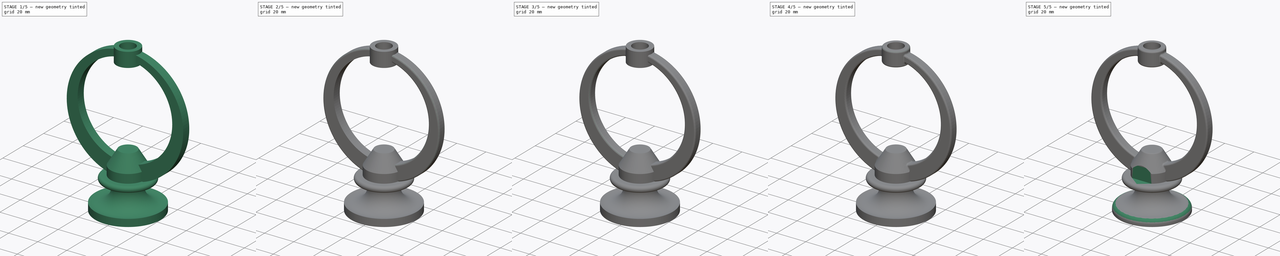
[diagram: build sequence overview — one tinted view per stage of 5, left to right]
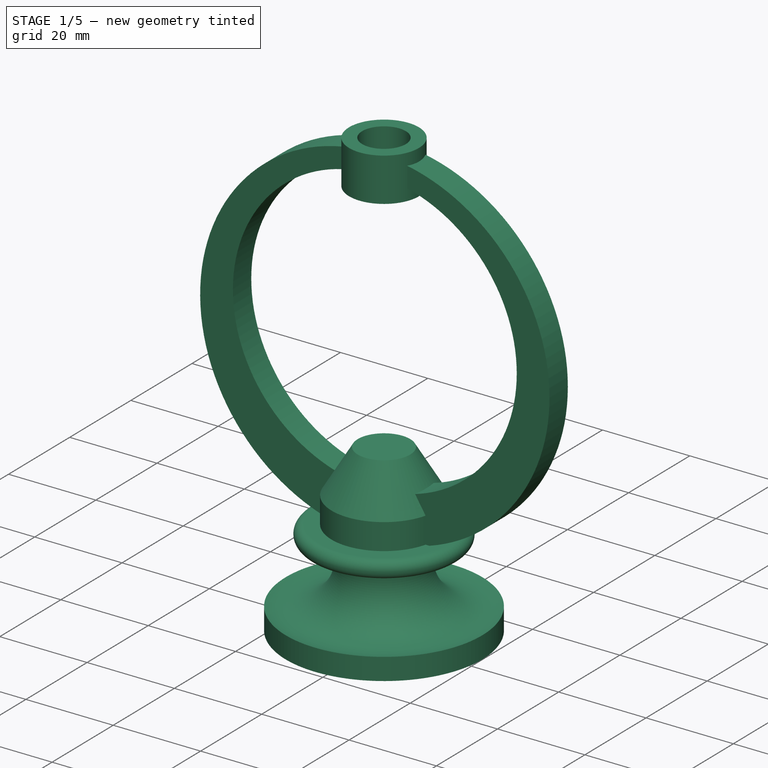
[diagram: stage 1 of 5 — iso view after this stage's code; geometry added in this stage tinted green]
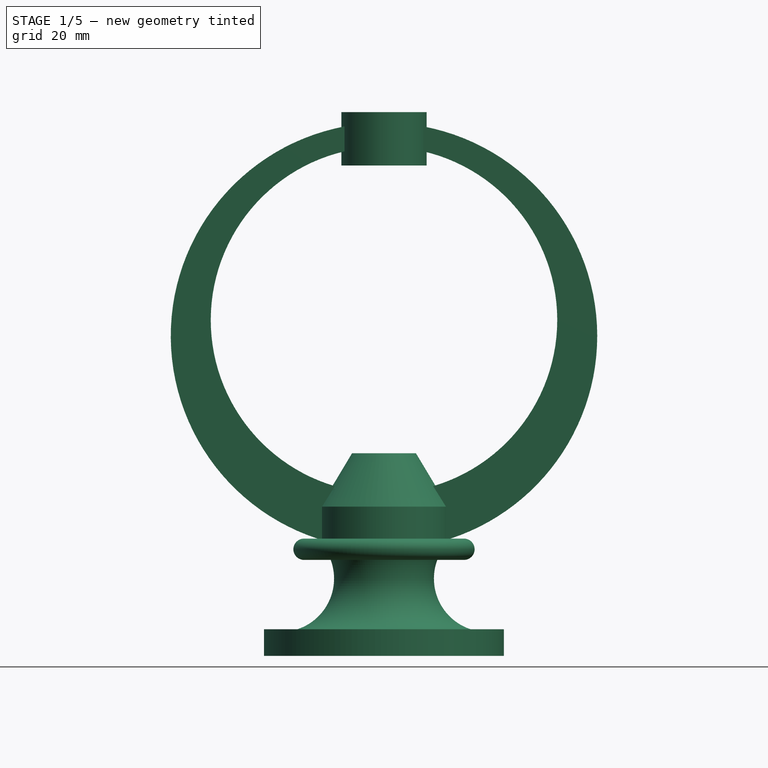
[diagram: stage 1 of 5 — front view after this stage's code; geometry added in this stage tinted green]
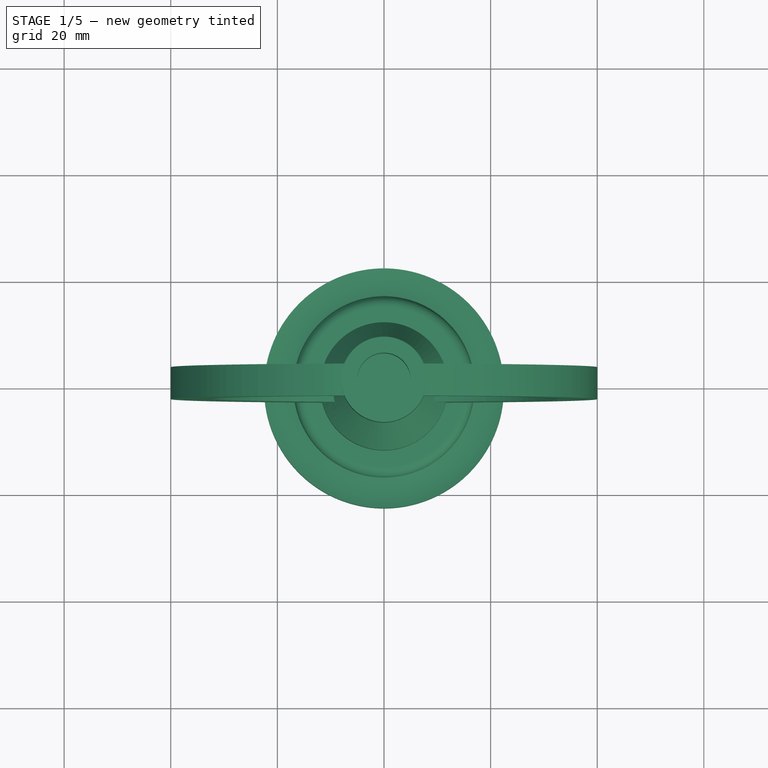
[diagram: stage 1 of 5 — top view after this stage's code; geometry added in this stage tinted green]
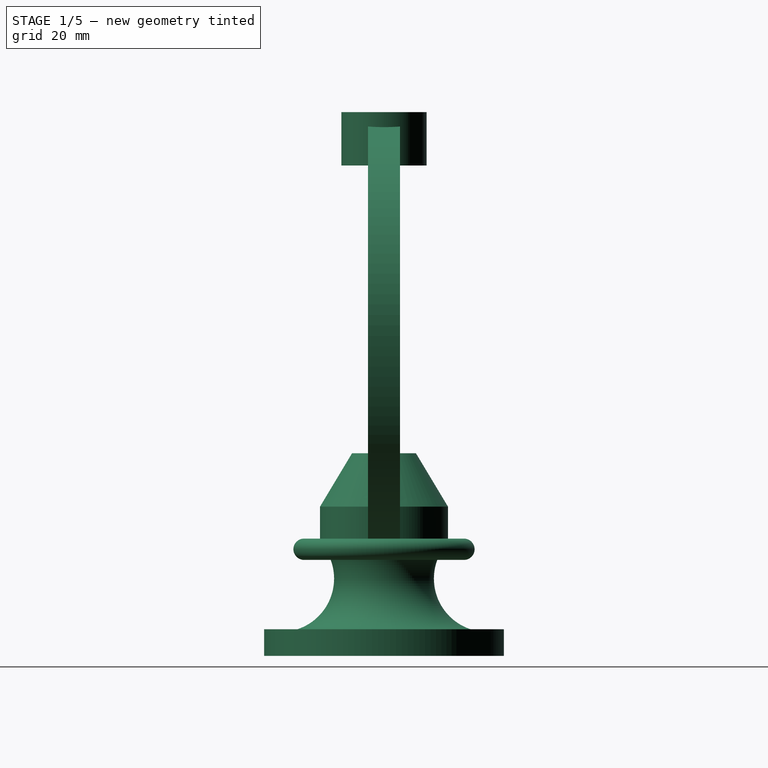
[diagram: stage 1 of 5 — right view after this stage's code; geometry added in this stage tinted green]
FCSTD DOCUMENT  (FreeCAD 0.19R24291 (Git))
Label: week5
License: All rights reserved
LicenseURL: http://en.wikipedia.org/wiki/All_rights_reserved
objects: PartDesign::Fillet×17, Sketcher::SketchObject×7, PartDesign::Revolution×2, PartDesign::Pad×2, PartDesign::Pocket×2, PartDesign::Groove×1, PartDesign::Body×1
note: 56 computed .brp shape members not serialized (recipe doc carries the construction recipe); baked Part::Feature solids carry a one-line shape summary decoded from their .brp

FEATURE [Sketcher::SketchObject] Sketch
  FullyConstrained = true
  MapMode = 5
  Placement = pos=(0,0,0) rot=(1,0,0;1.5708rad)
  Support = -> [XZ_Plane]
  sketch-geometry (9):
    g0: LineSegment StartX=0 StartY=0 StartZ=0 EndX=22.5 EndY=0 EndZ=0
    g1: LineSegment StartX=22.5 StartY=0 StartZ=0 EndX=22.5 EndY=5 EndZ=0
    g2: ArcOfCircle CenterX=19.3661 CenterY=14.4962 CenterZ=0 NormalX=0 NormalY=0 NormalZ=1 AngleXU=0 Radius=10 StartAngle=2.78362 EndAngle=5.03115
    g3: LineSegment StartX=10 StartY=18 StartZ=0 EndX=0 EndY=18 EndZ=0
    g4: LineSegment StartX=0 StartY=18 StartZ=0 EndX=0 EndY=0 EndZ=0
    g5: ArcOfCircle CenterX=15 CenterY=20 CenterZ=0 NormalX=0 NormalY=0 NormalZ=1 AngleXU=0 Radius=2 StartAngle=4.71239 EndAngle=7.85398
    g6: LineSegment StartX=0 StartY=18 StartZ=0 EndX=15 EndY=18 EndZ=0
    g7: LineSegment StartX=0 StartY=22 StartZ=0 EndX=15 EndY=22 EndZ=0
    g8: LineSegment StartX=0 StartY=22 StartZ=0 EndX=0 EndY=18 EndZ=0
  constraints (25):
    c: Horizontal(g0)
    c: Coincident(g0,g1)
    c: Vertical(g1)
    c: Coincident(g2,g3)
    c: Coincident(g3,g4)
    c: Coincident(g4,g0)
    c: Vertical(g4)
    c: DistanceY(g4,g4) = 18
    c: DistanceX(g0,g0) = 22.5
    c: Horizontal(g3)
    c: DistanceX(g3,g3) = 10
    c: Radius(g2) = 10
    c: DistanceY(g1,g1) = 5
    c: Coincident(g1,g2)
    c: Coincident(g-1,g0)
    c: Tangent(g6,g5) = -1.5708
    c: Tangent(g7,g5) = 1.5708
    c: Horizontal(g6)
    c: Horizontal(g7)
    c: Coincident(g3,g6)
    c: PointOnObject(g7,g-2)
    c: Coincident(g8,g7)
    c: Coincident(g8,g3)
    c: DistanceY(g8,g8) = 4
    c: DistanceX(g7,g7) = 15
FEATURE [PartDesign::Revolution] Revolution
  Angle = 360
  Axis = (-3e-16,3e-16,1)
  Base = (0,0,0)
  Placement = pos=(0,0,0) rot=(1,0,0;1.5708rad)
  Profile = -> Sketch
  ReferenceAxis = -> Z_Axis
  Refine = true
FEATURE [Sketcher::SketchObject] Sketch001
  FullyConstrained = true
  MapMode = 5
  Placement = pos=(0,0,0) rot=(1,0,0;1.5708rad)
  Support = -> [XZ_Plane]
  sketch-geometry (2):
    g0: Circle CenterX=0 CenterY=60 CenterZ=0 NormalX=0 NormalY=0 NormalZ=1 AngleXU=0 Radius=40
    g1: Circle CenterX=0 CenterY=63 CenterZ=0 NormalX=0 NormalY=0 NormalZ=1 AngleXU=0 Radius=32.5
  constraints (6):
    c: PointOnObject(g0,g-2)
    c: PointOnObject(g1,g-2)
    c: DistanceY(g1,g0) = -3
    c: Radius(g0) = 40
    c: Radius(g1) = 32.5
    c: DistanceY(g-1,g0) = 60
FEATURE [PartDesign::Pad] Pad
  BaseFeature = -> Revolution
  Direction = (1,1,1)
  Length = 6
  Length2 = 100
  Midplane = true
  Placement = pos=(0,0,0) rot=(1,0,0;1.5708rad)
  Profile = -> Sketch001
  Refine = true
  Type = 0
FEATURE [Sketcher::SketchObject] Sketch002
  FullyConstrained = true
  MapMode = 5
  Placement = pos=(0,0,0) rot=(1,0,0;1.5708rad)
  Support = -> [XZ_Plane]
  sketch-geometry (5):
    g0: LineSegment StartX=0 StartY=22 StartZ=0 EndX=12 EndY=22 EndZ=0
    g1: LineSegment StartX=12 StartY=22 StartZ=0 EndX=12 EndY=28 EndZ=0
    g2: LineSegment StartX=12 StartY=28 StartZ=0 EndX=6 EndY=38 EndZ=0
    g3: LineSegment StartX=6 StartY=38 StartZ=0 EndX=0 EndY=38 EndZ=0
    g4: LineSegment StartX=0 StartY=38 StartZ=0 EndX=0 EndY=22 EndZ=0
  constraints (15):
    c: PointOnObject(g0,g-2)
    c: Coincident(g0,g1)
    c: Coincident(g1,g2)
    c: Coincident(g2,g3)
    c: Horizontal(g3)
    c: Coincident(g3,g4)
    c: Coincident(g4,g0)
    c: Vertical(g4)
    c: Horizontal(g0)
    c: DistanceY(g-1,g0) = 22
    c: DistanceY(g4,g4) = 16
    c: DistanceX(g3,g3) = 6
    c: DistanceY(g1,g1) = 6
    c: Vertical(g1)
    c: DistanceX(g0,g0) = 12
FEATURE [PartDesign::Revolution] Revolution001
  Angle = 360
  Axis = (-3e-16,3e-16,1)
  Base = (0,0,0)
  BaseFeature = -> Pad
  Placement = pos=(0,0,0) rot=(1,0,0;1.5708rad)
  Profile = -> Sketch002
  ReferenceAxis = -> Z_Axis
  Refine = true
  Reversed = true
FEATURE [Sketcher::SketchObject] Sketch003
  AttachmentOffset = pos=(0,0,102) rot=(0,0,1;0rad)
  FullyConstrained = true
  MapMode = 5
  Placement = pos=(0,0,102) rot=(0,0,1;0rad)
  Support = -> [XY_Plane]
  sketch-geometry (1):
    g0: Circle CenterX=0 CenterY=0 CenterZ=0 NormalX=0 NormalY=0 NormalZ=1 AngleXU=0 Radius=8
  constraints (2):
    c: Coincident(g0,g-1)
    c: Radius(g0) = 8
FEATURE [PartDesign::Pad] Pad001
  BaseFeature = -> Revolution001
  Direction = (1,1,1)
  Length = 10
  Length2 = 100
  Placement = pos=(0,0,0) rot=(1,0,0;1.5708rad)
  Profile = -> Sketch003
  Refine = true
  Reversed = true
  Type = 0
FEATURE [Sketcher::SketchObject] Sketch004
  AttachmentOffset = pos=(0,0,102) rot=(0,0,1;0rad)
  FullyConstrained = true
  MapMode = 5
  Placement = pos=(0,0,102) rot=(0,0,1;0rad)
  Support = -> [XY_Plane]
  sketch-geometry (1):
    g0: Circle CenterX=0 CenterY=0 CenterZ=0 NormalX=0 NormalY=0 NormalZ=1 AngleXU=0 Radius=5
  constraints (2):
    c: Coincident(g0,g-1)
    c: Radius(g0) = 5
FEATURE [PartDesign::Pocket] Pocket
  BaseFeature = -> Pad001
  Length = 10
  Length2 = 100
  Placement = pos=(0,0,0) rot=(1,0,0;1.5708rad)
  Profile = -> Sketch004
  Refine = true
  Type = 0
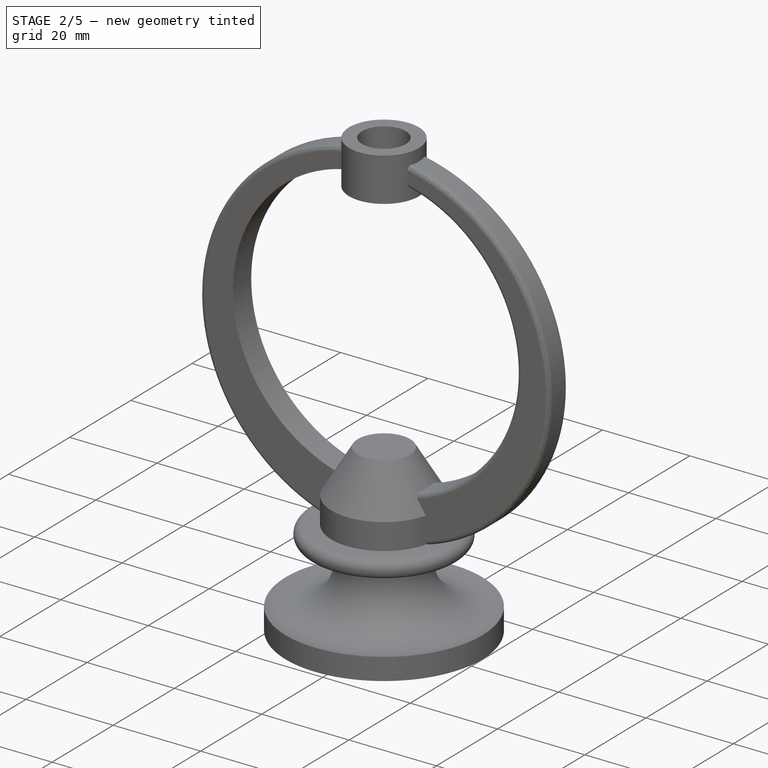
[diagram: stage 2 of 5 — iso view after this stage's code; geometry added in this stage tinted green]
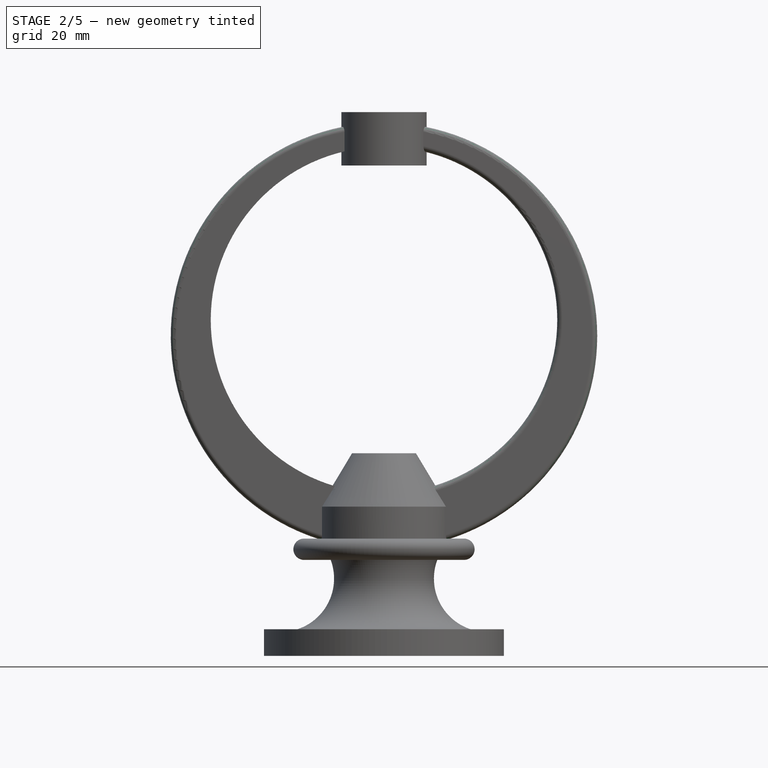
[diagram: stage 2 of 5 — front view after this stage's code; geometry added in this stage tinted green]
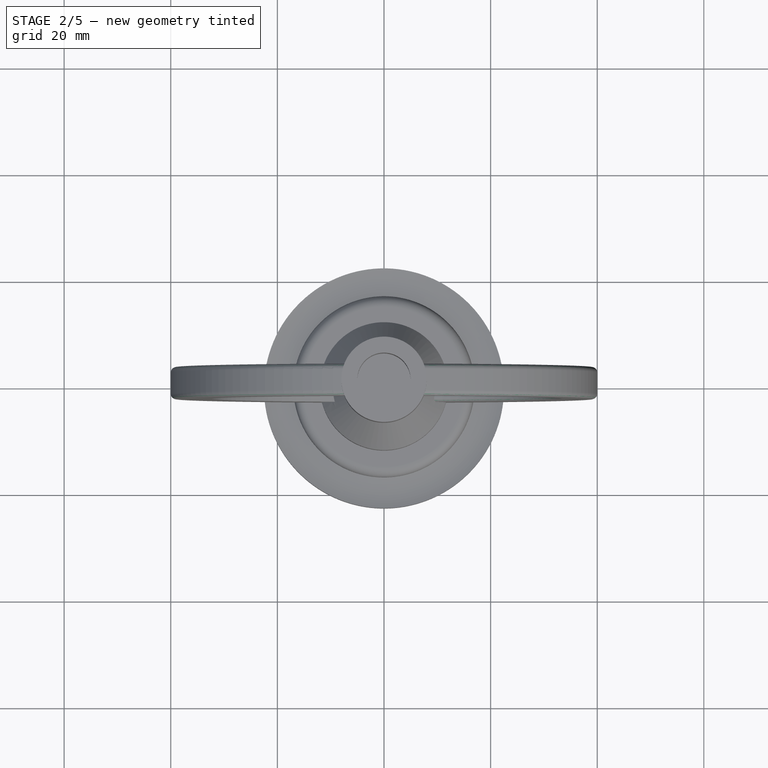
[diagram: stage 2 of 5 — top view after this stage's code; geometry added in this stage tinted green]
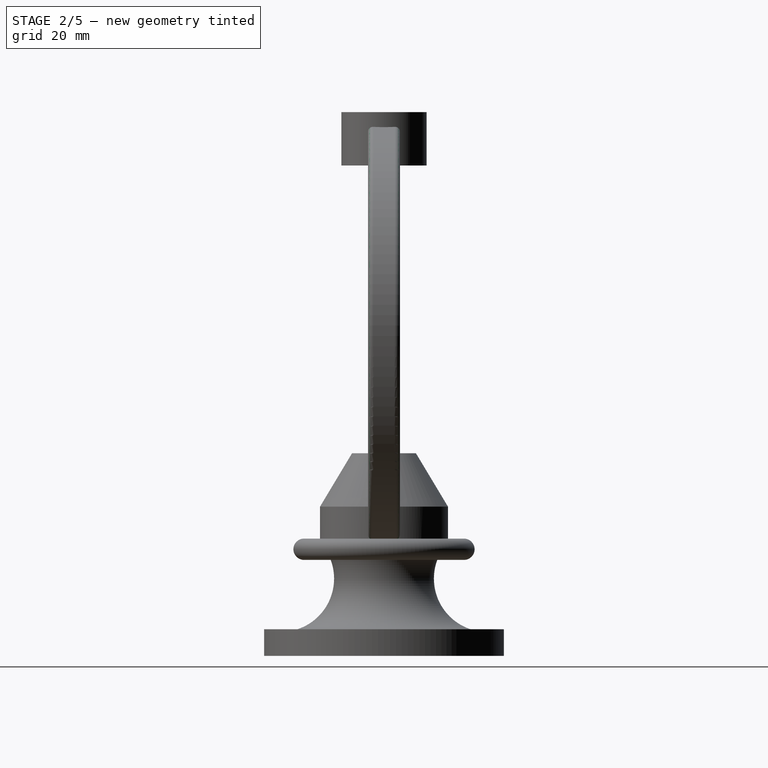
[diagram: stage 2 of 5 — right view after this stage's code; geometry added in this stage tinted green]
FEATURE [PartDesign::Fillet] Fillet
  Base = -> Pocket [Edge22]
  BaseFeature = -> Pocket
  Placement = pos=(0,0,0) rot=(1,0,0;1.5708rad)
  Radius = 1
  Refine = true
  SupportTransform = false
FEATURE [PartDesign::Fillet] Fillet001
  Base = -> Fillet [Edge20]
  BaseFeature = -> Fillet
  Placement = pos=(0,0,0) rot=(1,0,0;1.5708rad)
  Radius = 1
  Refine = true
  SupportTransform = false
FEATURE [PartDesign::Fillet] Fillet002
  Base = -> Fillet001 [Edge22]
  BaseFeature = -> Fillet001
  Placement = pos=(0,0,0) rot=(1,0,0;1.5708rad)
  Radius = 1
  Refine = true
  SupportTransform = false
FEATURE [PartDesign::Fillet] Fillet003
  Base = -> Fillet002 [Edge30]
  BaseFeature = -> Fillet002
  Placement = pos=(0,0,0) rot=(1,0,0;1.5708rad)
  Radius = 1
  Refine = true
  SupportTransform = false
FEATURE [PartDesign::Fillet] Fillet004
  Base = -> Fillet003 [Edge68]
  BaseFeature = -> Fillet003
  Placement = pos=(0,0,0) rot=(1,0,0;1.5708rad)
  Radius = 1
  Refine = true
  SupportTransform = false
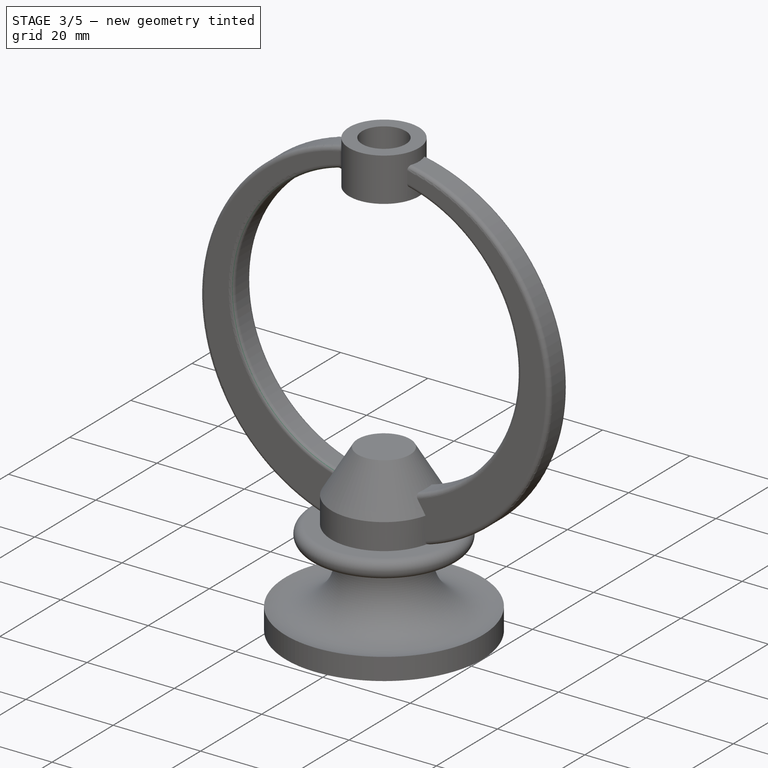
[diagram: stage 3 of 5 — iso view after this stage's code; geometry added in this stage tinted green]
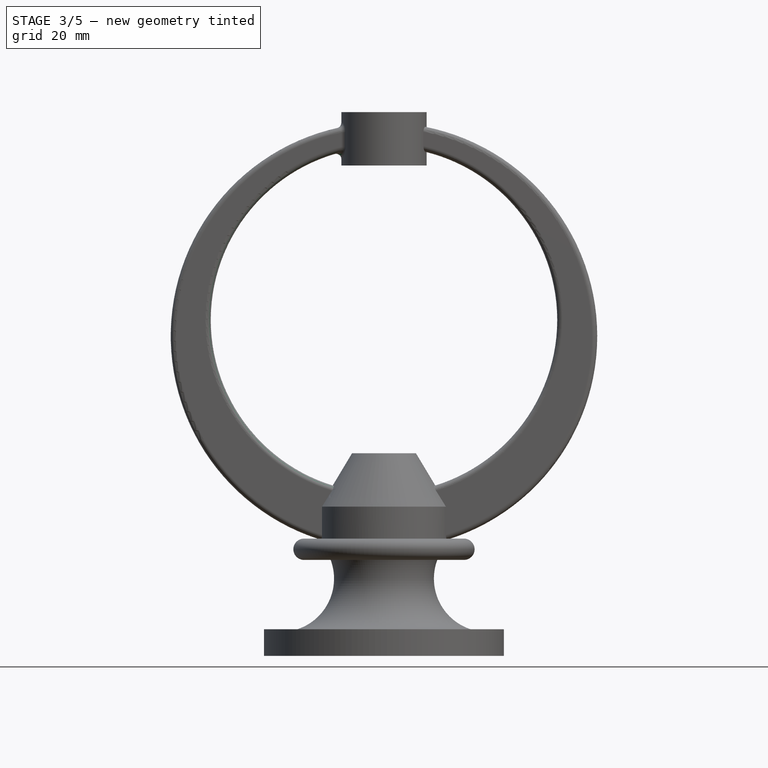
[diagram: stage 3 of 5 — front view after this stage's code; geometry added in this stage tinted green]
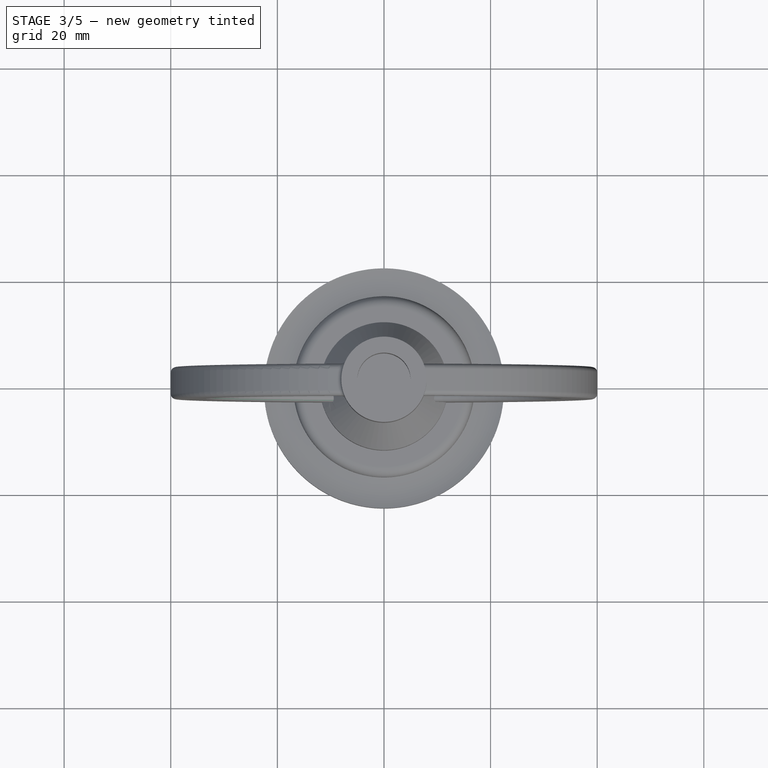
[diagram: stage 3 of 5 — top view after this stage's code; geometry added in this stage tinted green]
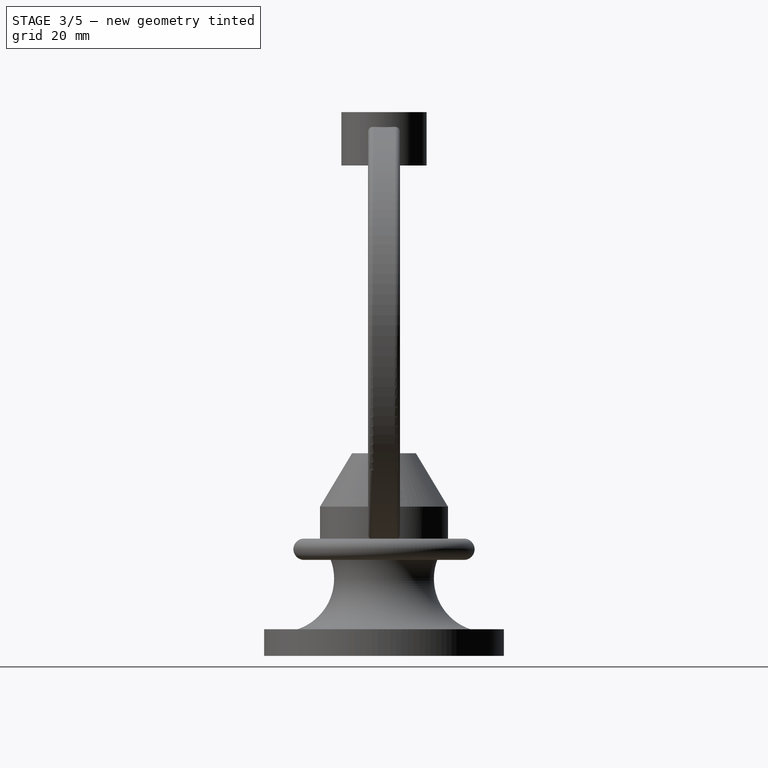
[diagram: stage 3 of 5 — right view after this stage's code; geometry added in this stage tinted green]
FEATURE [PartDesign::Fillet] Fillet005
  Base = -> Fillet004 [Edge33]
  BaseFeature = -> Fillet004
  Placement = pos=(0,0,0) rot=(1,0,0;1.5708rad)
  Radius = 1
  Refine = true
  SupportTransform = false
FEATURE [PartDesign::Fillet] Fillet006
  Base = -> Fillet005 [Edge26]
  BaseFeature = -> Fillet005
  Placement = pos=(0,0,0) rot=(1,0,0;1.5708rad)
  Radius = 1
  Refine = true
  SupportTransform = false
FEATURE [PartDesign::Fillet] Fillet007
  Base = -> Fillet006 [Edge35]
  BaseFeature = -> Fillet006
  Placement = pos=(0,0,0) rot=(1,0,0;1.5708rad)
  Radius = 1
  Refine = true
  SupportTransform = false
FEATURE [PartDesign::Fillet] Fillet008
  Base = -> Fillet007 [Edge71]
  BaseFeature = -> Fillet007
  Placement = pos=(0,0,0) rot=(1,0,0;1.5708rad)
  Radius = 1
  Refine = true
  SupportTransform = false
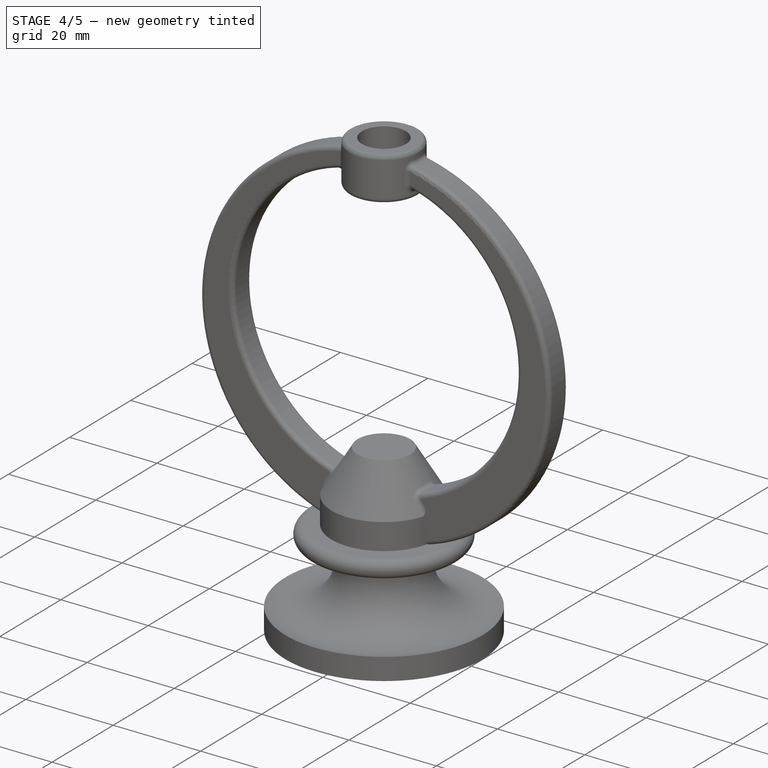
[diagram: stage 4 of 5 — iso view after this stage's code; geometry added in this stage tinted green]
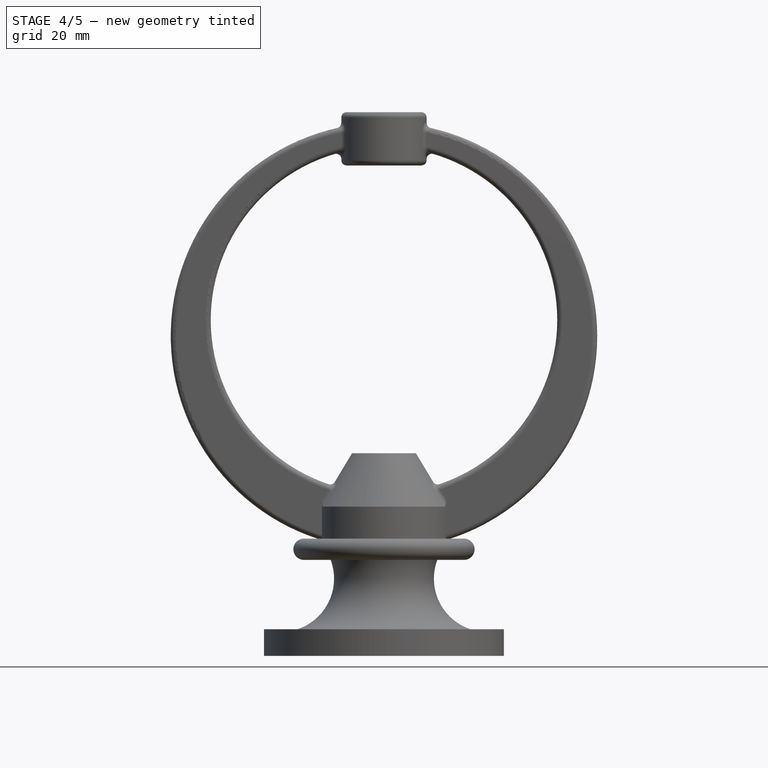
[diagram: stage 4 of 5 — front view after this stage's code; geometry added in this stage tinted green]
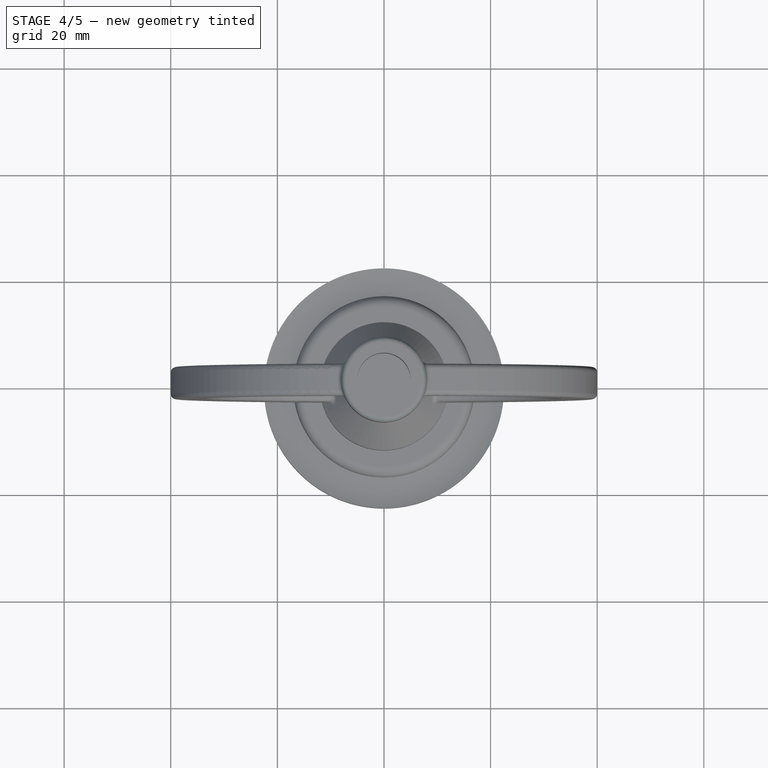
[diagram: stage 4 of 5 — top view after this stage's code; geometry added in this stage tinted green]
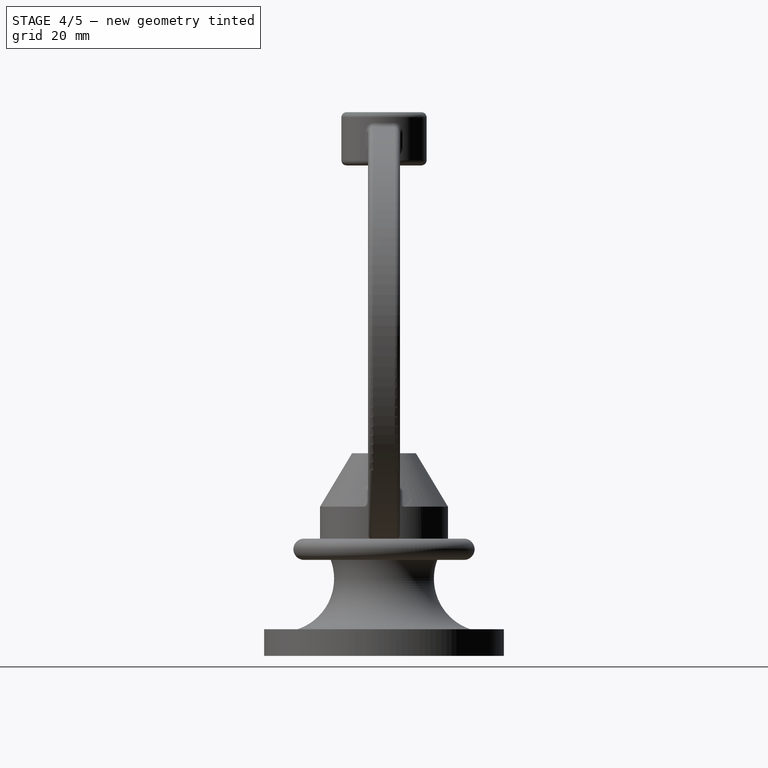
[diagram: stage 4 of 5 — right view after this stage's code; geometry added in this stage tinted green]
FEATURE [PartDesign::Fillet] Fillet009
  Base = -> Fillet008 [Edge54]
  BaseFeature = -> Fillet008
  Placement = pos=(0,0,0) rot=(1,0,0;1.5708rad)
  Radius = 1
  Refine = true
  SupportTransform = false
FEATURE [PartDesign::Fillet] Fillet010
  Base = -> Fillet009 [Edge65]
  BaseFeature = -> Fillet009
  Placement = pos=(0,0,0) rot=(1,0,0;1.5708rad)
  Radius = 1
  Refine = true
  SupportTransform = false
FEATURE [PartDesign::Fillet] Fillet011
  Base = -> Fillet010 [Edge41]
  BaseFeature = -> Fillet010
  Placement = pos=(0,0,0) rot=(1,0,0;1.5708rad)
  Radius = 1
  Refine = true
  SupportTransform = false
FEATURE [PartDesign::Fillet] Fillet012
  Base = -> Fillet011 [Edge136]
  BaseFeature = -> Fillet011
  Placement = pos=(0,0,0) rot=(1,0,0;1.5708rad)
  Radius = 1
  Refine = true
  SupportTransform = false
FEATURE [PartDesign::Fillet] Fillet013
  Base = -> Fillet012 [Edge14]
  BaseFeature = -> Fillet012
  Placement = pos=(0,0,0) rot=(1,0,0;1.5708rad)
  Radius = 1
  Refine = true
  SupportTransform = false
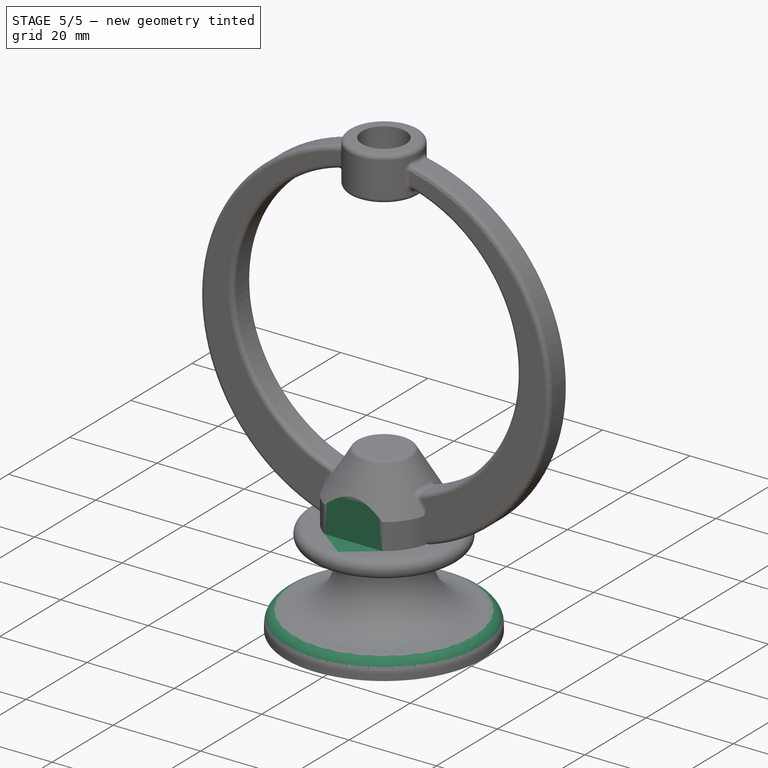
[diagram: stage 5 of 5 — iso view after this stage's code; geometry added in this stage tinted green]
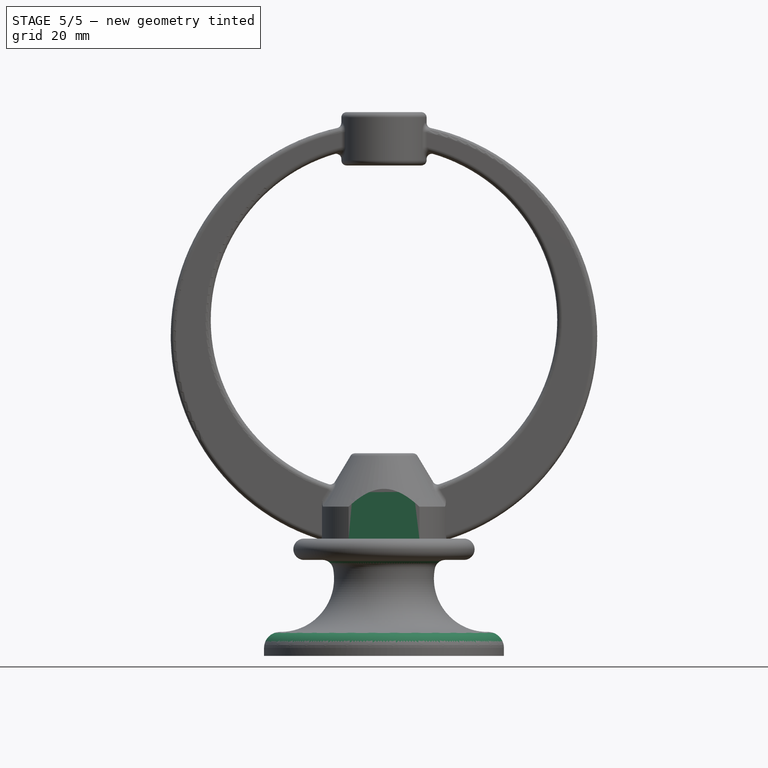
[diagram: stage 5 of 5 — front view after this stage's code; geometry added in this stage tinted green]
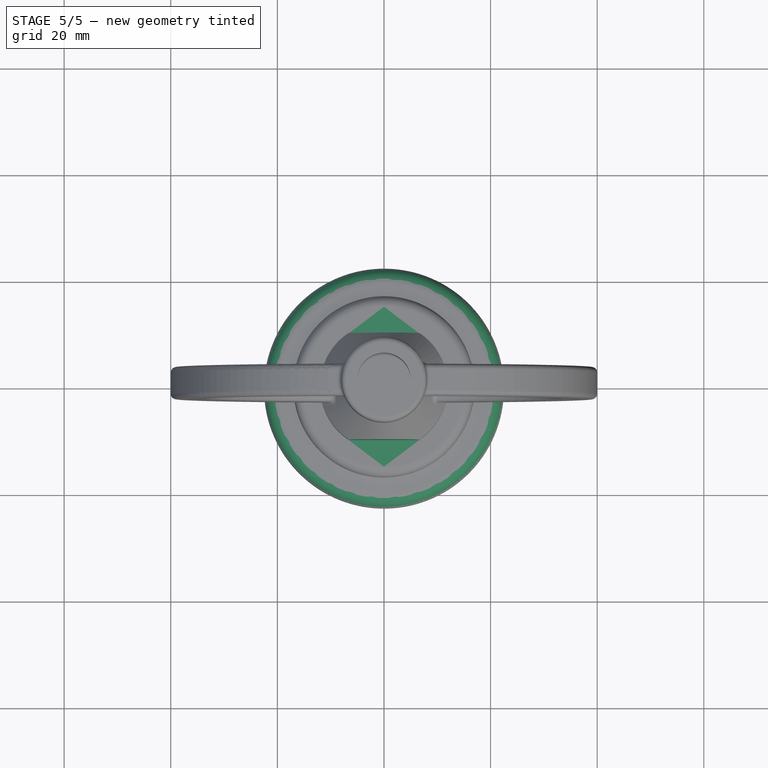
[diagram: stage 5 of 5 — top view after this stage's code; geometry added in this stage tinted green]
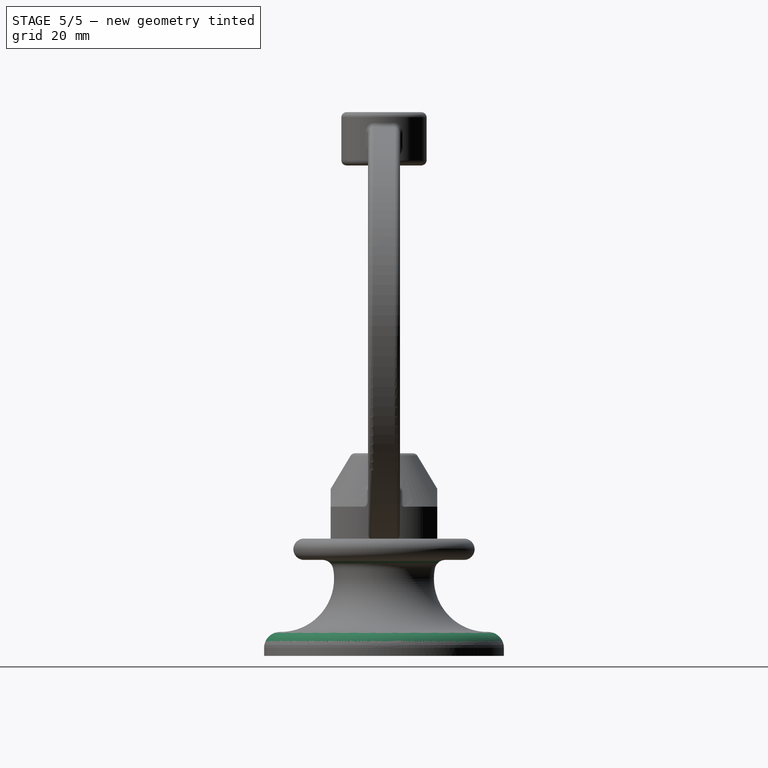
[diagram: stage 5 of 5 — right view after this stage's code; geometry added in this stage tinted green]
FEATURE [PartDesign::Fillet] Fillet014
  Base = -> Fillet013 [Edge156]
  BaseFeature = -> Fillet013
  Placement = pos=(0,0,0) rot=(1,0,0;1.5708rad)
  Radius = 2
  Refine = true
  SupportTransform = false
FEATURE [PartDesign::Fillet] Fillet015
  Base = -> Fillet014 [Edge8]
  BaseFeature = -> Fillet014
  Placement = pos=(0,0,0) rot=(1,0,0;1.5708rad)
  Radius = 3
  Refine = true
  SupportTransform = false
FEATURE [PartDesign::Fillet] Fillet016
  Base = -> Fillet015 [Edge65]
  BaseFeature = -> Fillet015
  Placement = pos=(0,0,0) rot=(1,0,0;1.5708rad)
  Radius = 1
  Refine = true
  SupportTransform = false
FEATURE [Sketcher::SketchObject] Sketch005
  FullyConstrained = true
  MapMode = 5
  Placement = pos=(0,0,0) rot=(1,0,0;1.5708rad)
  Support = -> [XZ_Plane]
  sketch-geometry (7):
    g0: LineSegment StartX=0 StartY=0 StartZ=0 EndX=19.5 EndY=0 EndZ=0
    g1: LineSegment StartX=19.5 StartY=0 StartZ=0 EndX=19.5 EndY=2.5 EndZ=0
    g2: ArcOfCircle CenterX=17 CenterY=13.7 CenterZ=0 NormalX=0 NormalY=0 NormalZ=1 AngleXU=0 Radius=10 StartAngle=3.14159 EndAngle=3.91536
    g3: LineSegment StartX=7 StartY=18 StartZ=0 EndX=0 EndY=18 EndZ=0
    g4: LineSegment StartX=0 StartY=18 StartZ=0 EndX=0 EndY=0 EndZ=0
    g5: LineSegment StartX=7 StartY=18 StartZ=0 EndX=7 EndY=13.7 EndZ=0
    g6: ArcOfCircle CenterX=19.8611 CenterY=16.4953 CenterZ=0 NormalX=0 NormalY=0 NormalZ=1 AngleXU=0 Radius=14 StartAngle=3.91536 EndAngle=4.68659
  constraints (21):
    c: Horizontal(g0)
    c: Horizontal(g3)
    c: Coincident(g3,g4)
    c: Coincident(g4,g0)
    c: Vertical(g4)
    c: DistanceX(g0,g0) = 19.5
    c: DistanceX(g3,g3) = 7
    c: DistanceY(g4,g4) = 18
    c: Radius(g2) = 10
    c: Vertical(g1)
    c: Coincident(g5,g3)
    c: Vertical(g5)
    c: Coincident(g5,g2)
    c: Coincident(g1,g0)
    c: Coincident(g0,g-1)
    c: DistanceY(g5,g5) = 4.3
    c: Tangent(g2,g6) = -1.5708
    c: Coincident(g6,g1)
    c: Radius(g6) = 14
    c: DistanceY(g1,g1) = 2.5
    c: DistanceX(g2) = 17
FEATURE [PartDesign::Groove] Groove
  Angle = 360
  Axis = (-3e-16,3e-16,1)
  Base = (0,0,0)
  BaseFeature = -> Fillet016
  Placement = pos=(0,0,0) rot=(1,0,0;1.5708rad)
  Profile = -> Sketch005
  ReferenceAxis = -> Z_Axis
  Refine = true
FEATURE [Sketcher::SketchObject] Sketch007
  FullyConstrained = true
  MapMode = 5
  Placement = pos=(-7.3e-15,6.59e-14,22) rot=(0,0,1;3.14159rad)
  Support = -> [Groove]
  sketch-geometry (8):
    g0: LineSegment StartX=-30 StartY=30 StartZ=0 EndX=30 EndY=30 EndZ=0
    g1: LineSegment StartX=30 StartY=30 StartZ=0 EndX=30 EndY=10 EndZ=0
    g2: LineSegment StartX=30 StartY=10 StartZ=0 EndX=-30 EndY=10 EndZ=0
    g3: LineSegment StartX=-30 StartY=10 StartZ=0 EndX=-30 EndY=30 EndZ=0
    g4: LineSegment StartX=-30 StartY=-10 StartZ=0 EndX=30 EndY=-10 EndZ=0
    g5: LineSegment StartX=30 StartY=-10 StartZ=0 EndX=30 EndY=-30 EndZ=0
    g6: LineSegment StartX=30 StartY=-30 StartZ=0 EndX=-30 EndY=-30 EndZ=0
    g7: LineSegment StartX=-30 StartY=-30 StartZ=0 EndX=-30 EndY=-10 EndZ=0
  constraints (22):
    c: Coincident(g0,g1)
    c: Coincident(g1,g2)
    c: Coincident(g2,g3)
    c: Coincident(g3,g0)
    c: Horizontal(g2)
    c: Vertical(g1)
    c: Vertical(g3)
    c: DistanceY(g-1,g1) = 10
    c: DistanceX(g0,g0) = 60
    c: DistanceY(g1,g1) = 20
    c: Symmetric(g0,g0,g-2)
    c: Coincident(g4,g5)
    c: Coincident(g5,g6)
    c: Coincident(g6,g7)
    c: Coincident(g7,g4)
    c: Horizontal(g4)
    c: Horizontal(g6)
    c: Vertical(g5)
    c: Vertical(g7)
    c: Equal(g1,g5)
    c: Equal(g4,g2)
    c: Symmetric(g4,g1,g-1)
FEATURE [PartDesign::Pocket] Pocket001
  BaseFeature = -> Groove
  Length = 20
  Length2 = 100
  Placement = pos=(0,0,0) rot=(1,0,0;1.5708rad)
  Profile = -> Sketch007
  Refine = true
  Reversed = true
  Type = 0
FEATURE [PartDesign::Body] Body
  Group = -> [Sketch,Revolution,Sketch001,Pad,Sketch002,Revolution001,Sketch003,Pad001,Sketch004,Pocket,Fillet,Fillet001,Fillet002,Fillet003,Fillet004,Fillet005,Fillet006,Fillet007,Fillet008,Fillet009,Fillet010,Fillet011,Fillet012,Fillet013,Fillet014,Fillet015,Fillet016,Sketch005,Groove,Sketch007,Pocket001]
  Origin = -> Origin
  Tip = -> Pocket001
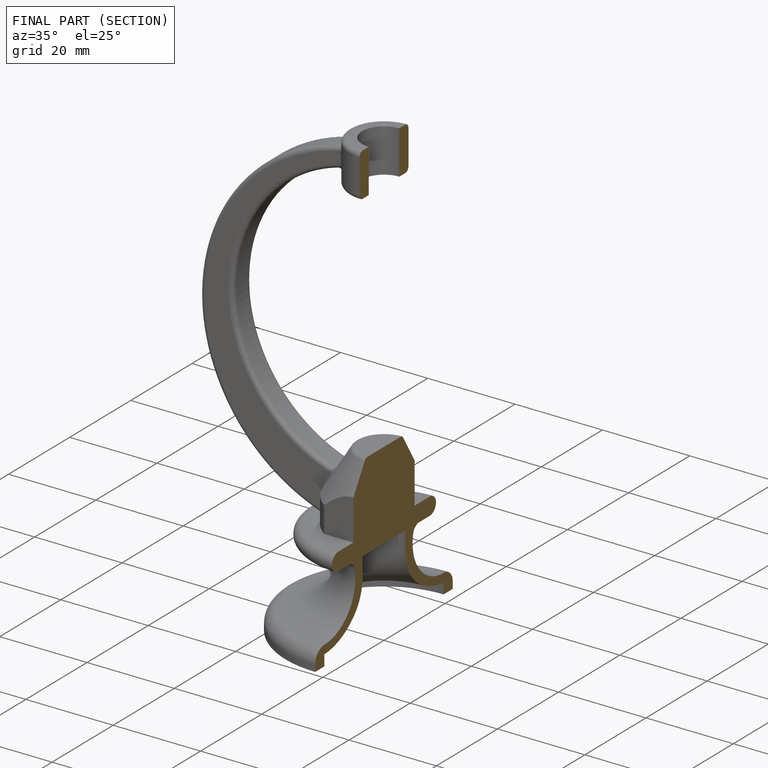
[diagram: finished part — half-section view (interior)]
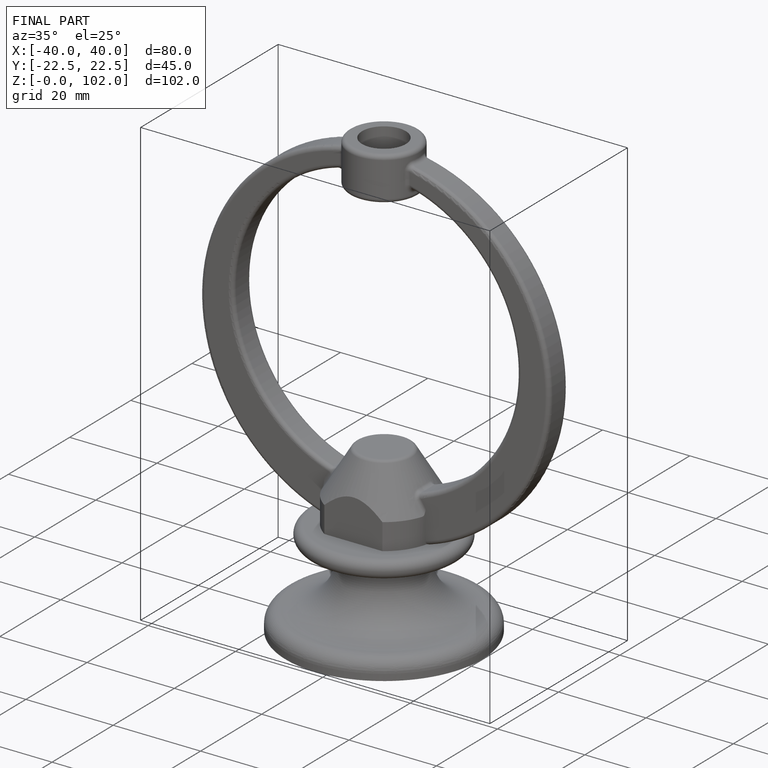
[diagram: finished part — iso view with bounding-box wireframe]
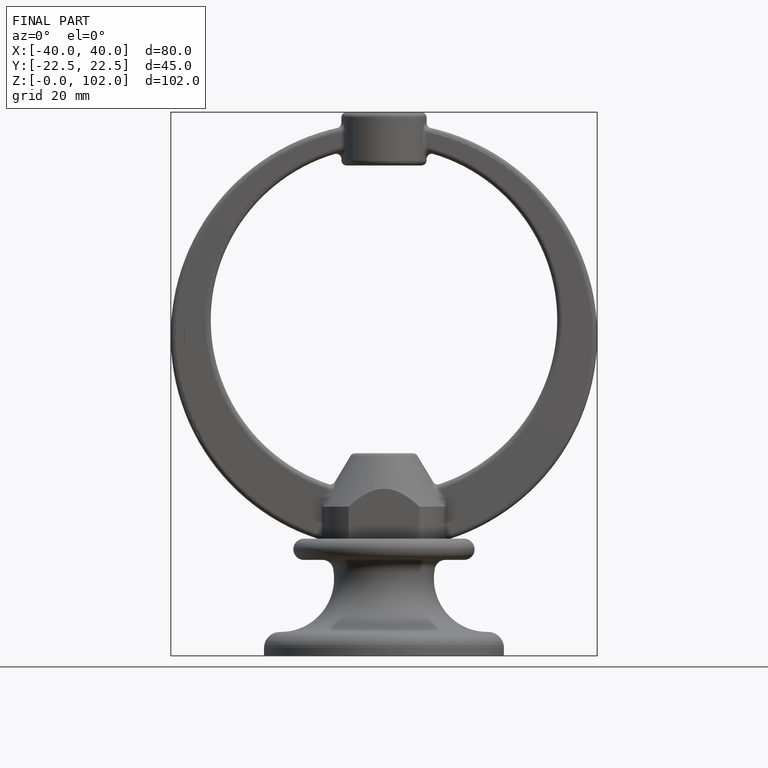
[diagram: finished part — front view with bounding-box wireframe]
